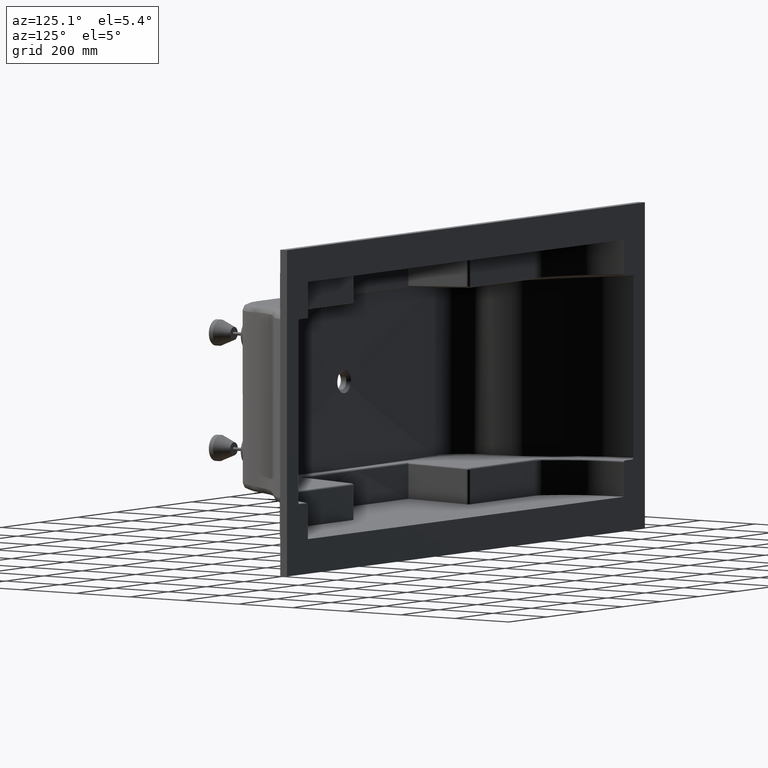
[diagram: clean part render]
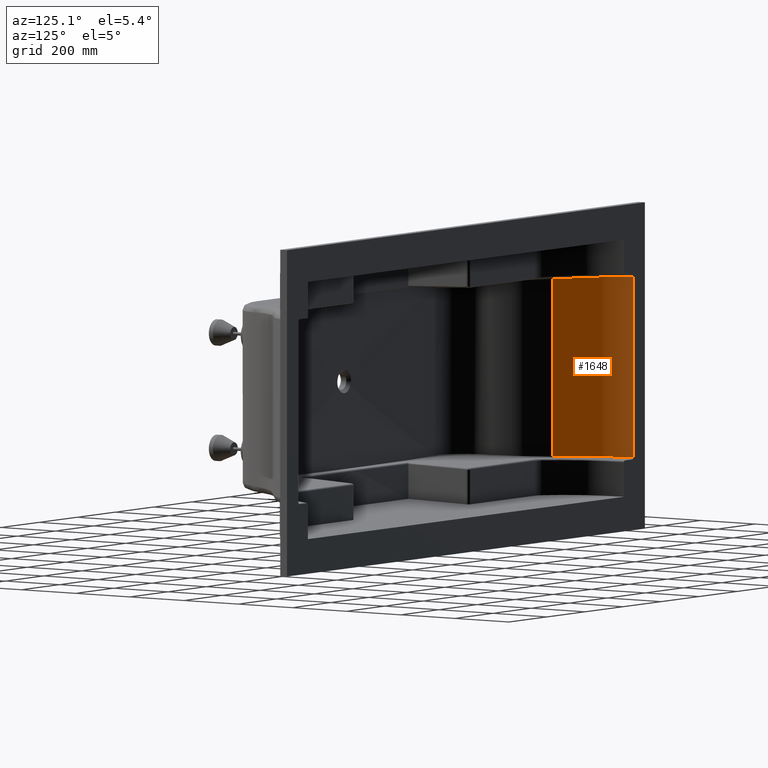
[diagram: same view with one face highlighted and labeled with its STEP entity id]
A machine part, auxiliary view. The second image highlights one B-rep face of the part: STEP entity #1648.
In plain terms, the highlighted cylindrical surface (partial cylindrical patch) has radius 470 mm, axis along (-0, -0, -1).
Its self-contained STEP definition (entity closure, byte-faithful):
#381 =( BOUNDED_CURVE ( )  B_SPLINE_CURVE ( 3, ( #4371, #6420, #2244, #7141 ),
 .UNSPECIFIED., .F., .F. ) 
 B_SPLINE_CURVE_WITH_KNOTS ( ( 4, 4 ),
 ( 0.6030875598613615300, 1.133393409601367400 ),
 .UNSPECIFIED. ) 
 CURVE ( )  GEOMETRIC_REPRESENTATION_ITEM ( )  RATIONAL_B_SPLINE_CURVE ( ( 1.000000000000000000, 0.9767016247705786500, 0.9767016247705786500, 1.000000000000000000 ) ) 
 REPRESENTATION_ITEM ( '' )  );
#613 = CARTESIAN_POINT ( 'NONE',  ( 95.61100091400767600, -61.15506674148905100, -767.5232635050832600 ) ) ;
#1337 = CARTESIAN_POINT ( 'NONE',  ( 60.00000000000255100, 15.00000000000001400, -770.0686995340361100 ) ) ;
#1648 = ADVANCED_FACE ( 'NONE', ( #6272 ), #4250, .F. ) ;
#1934 = CARTESIAN_POINT ( 'NONE',  ( 219.1733770814720400, -173.0000000000000000, -214.9999999999992900 ) ) ;
#2116 = CARTESIAN_POINT ( 'NONE',  ( 219.1733770814720400, -173.0000000000000000, -763.7849157502522500 ) ) ;
#2244 = CARTESIAN_POINT ( 'NONE',  ( 95.61100091400764700, -61.15506674148903700, -222.4767364949154600 ) ) ;
#2295 = ORIENTED_EDGE ( 'NONE', *, *, #7329, .F. ) ;
#2707 = LINE ( 'NONE', #1934, #2924 ) ;
#2924 = VECTOR ( 'NONE', #6845, 1000.000000000000000 ) ;
#2985 = VERTEX_POINT ( 'NONE', #8714 ) ;
#3090 = CARTESIAN_POINT ( 'NONE',  ( 485.7517610935226500, 214.0865086482912100, -214.9999999999992900 ) ) ;
#3114 = AXIS2_PLACEMENT_3D ( 'NONE', #3090, #5698, #3920 ) ;
#3401 = EDGE_LOOP ( 'NONE', ( #3647, #8028, #5357, #2295 ) ) ;
#3647 = ORIENTED_EDGE ( 'NONE', *, *, #8199, .T. ) ;
#3743 = CARTESIAN_POINT ( 'NONE',  ( 60.00000000000255100, 15.00000000000001400, -770.0686995340361100 ) ) ;
#3920 = DIRECTION ( 'NONE',  ( -1.000000000000000000, 0.0000000000000000000, 0.0000000000000000000 ) ) ;
#4168 = LINE ( 'NONE', #6909, #7637 ) ;
#4237 = VERTEX_POINT ( 'NONE', #7160 ) ;
#4250 = CYLINDRICAL_SURFACE ( 'NONE', #3114, 470.0000000000000000 ) ;
#4371 = CARTESIAN_POINT ( 'NONE',  ( 219.1733770814720400, -173.0000000000000000, -226.2150842497464100 ) ) ;
#4659 = VERTEX_POINT ( 'NONE', #3743 ) ;
#4728 =( BOUNDED_CURVE ( )  B_SPLINE_CURVE ( 3, ( #1337, #613, #6296, #2116 ),
 .UNSPECIFIED., .F., .F. ) 
 B_SPLINE_CURVE_WITH_KNOTS ( ( 4, 4 ),
 ( 2.008199243988425800, 2.538505093728431900 ),
 .UNSPECIFIED. ) 
 CURVE ( )  GEOMETRIC_REPRESENTATION_ITEM ( )  RATIONAL_B_SPLINE_CURVE ( ( 1.000000000000000000, 0.9767016247705784200, 0.9767016247705784200, 1.000000000000000000 ) ) 
 REPRESENTATION_ITEM ( '' )  );
#5188 = CARTESIAN_POINT ( 'NONE',  ( 60.00000000000255100, 15.00000000000001400, -219.9313004659625500 ) ) ;
#5357 = ORIENTED_EDGE ( 'NONE', *, *, #8273, .F. ) ;
#5698 = DIRECTION ( 'NONE',  ( -0.0000000000000000000, -0.0000000000000000000, -1.000000000000000000 ) ) ;
#6272 = FACE_OUTER_BOUND ( 'NONE', #3401, .T. ) ;
#6296 = CARTESIAN_POINT ( 'NONE',  ( 149.9344411693188300, -125.3165927155927900, -765.3787041622167600 ) ) ;
#6420 = CARTESIAN_POINT ( 'NONE',  ( 149.9344411693188000, -125.3165927155926800, -224.6212958377819600 ) ) ;
#6845 = DIRECTION ( 'NONE',  ( -0.0000000000000000000, -0.0000000000000000000, -1.000000000000000000 ) ) ;
#6909 = CARTESIAN_POINT ( 'NONE',  ( 60.00000000000255100, 15.00000000000001400, -214.9999999999992900 ) ) ;
#7141 = CARTESIAN_POINT ( 'NONE',  ( 60.00000000000255100, 15.00000000000001400, -219.9313004659625500 ) ) ;
#7160 = CARTESIAN_POINT ( 'NONE',  ( 219.1733770814720400, -173.0000000000000000, -226.2150842497464100 ) ) ;
#7216 = EDGE_CURVE ( 'NONE', #4659, #2985, #4728, .T. ) ;
#7329 = EDGE_CURVE ( 'NONE', #4237, #9052, #381, .T. ) ;
#7637 = VECTOR ( 'NONE', #9024, 1000.000000000000000 ) ;
#8028 = ORIENTED_EDGE ( 'NONE', *, *, #7216, .F. ) ;
#8199 = EDGE_CURVE ( 'NONE', #4237, #2985, #2707, .T. ) ;
#8273 = EDGE_CURVE ( 'NONE', #9052, #4659, #4168, .T. ) ;
#8714 = CARTESIAN_POINT ( 'NONE',  ( 219.1733770814720400, -173.0000000000000000, -763.7849157502522500 ) ) ;
#9024 = DIRECTION ( 'NONE',  ( -0.0000000000000000000, -0.0000000000000000000, -1.000000000000000000 ) ) ;
#9052 = VERTEX_POINT ( 'NONE', #5188 ) ;